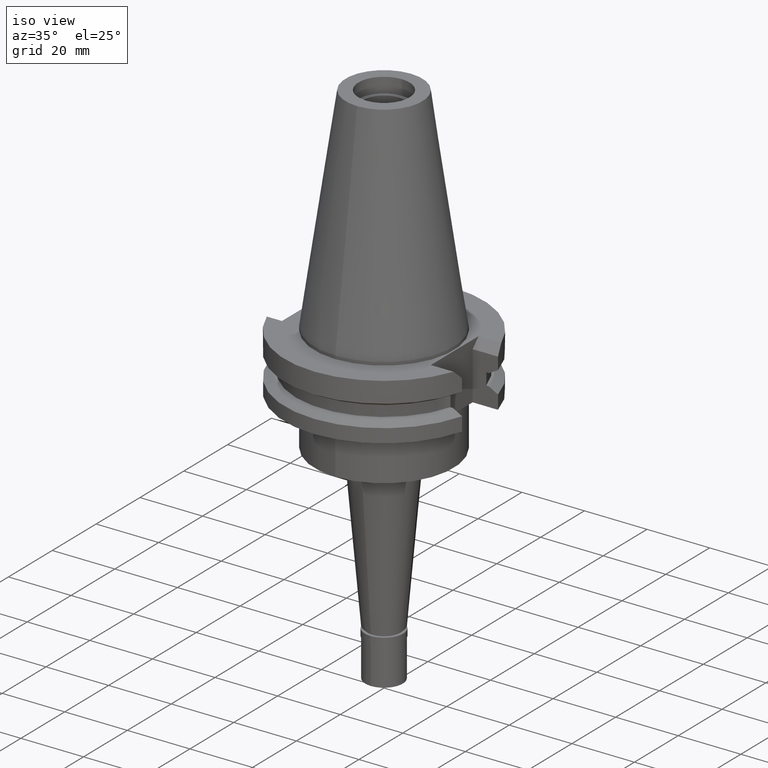
[diagram: clean part render]
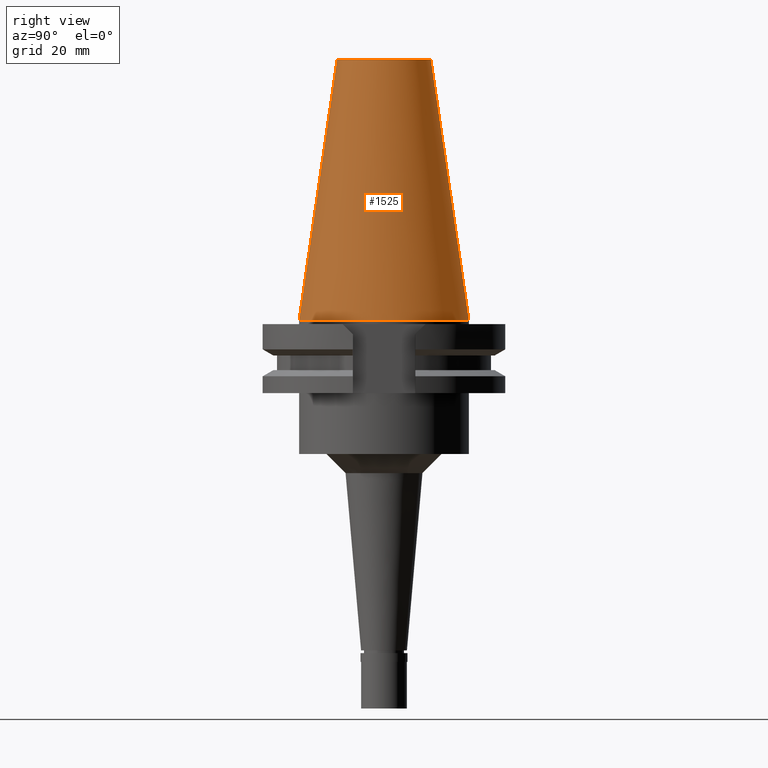
[diagram: tour spotlight — one face highlighted and labeled with its STEP entity id]
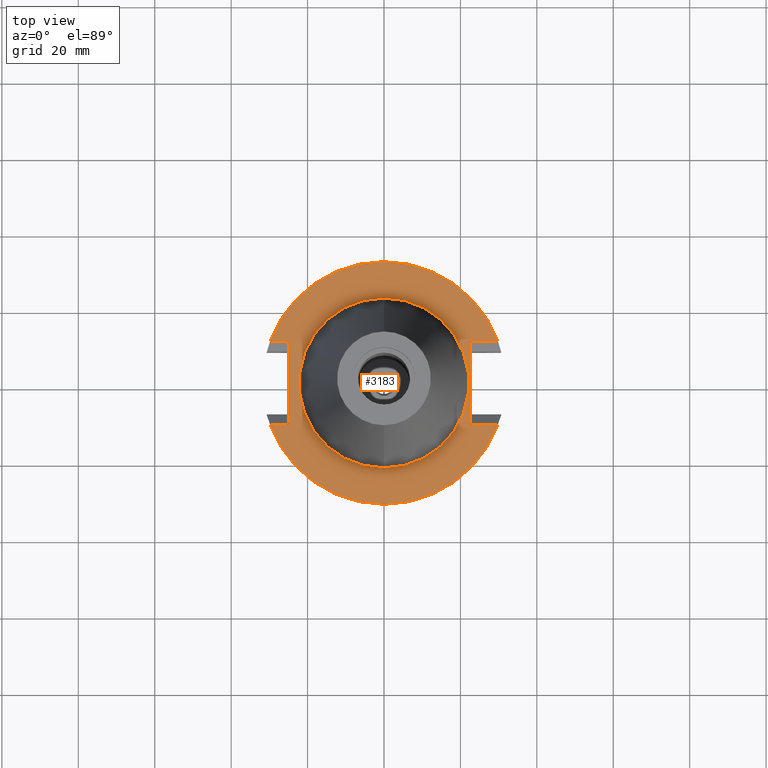
[diagram: tour spotlight — one face highlighted and labeled with its STEP entity id]
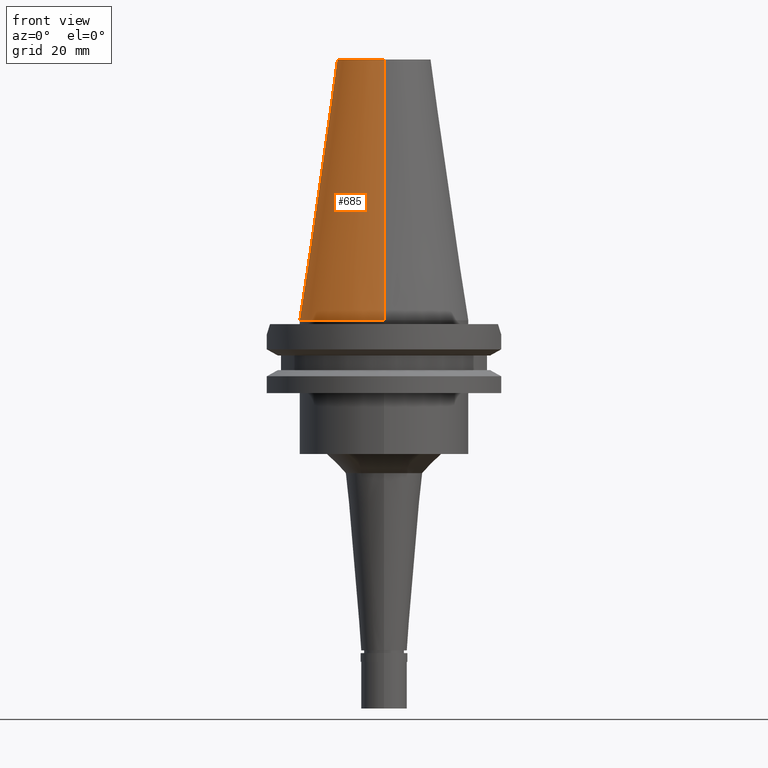
[diagram: tour spotlight — one face highlighted and labeled with its STEP entity id]
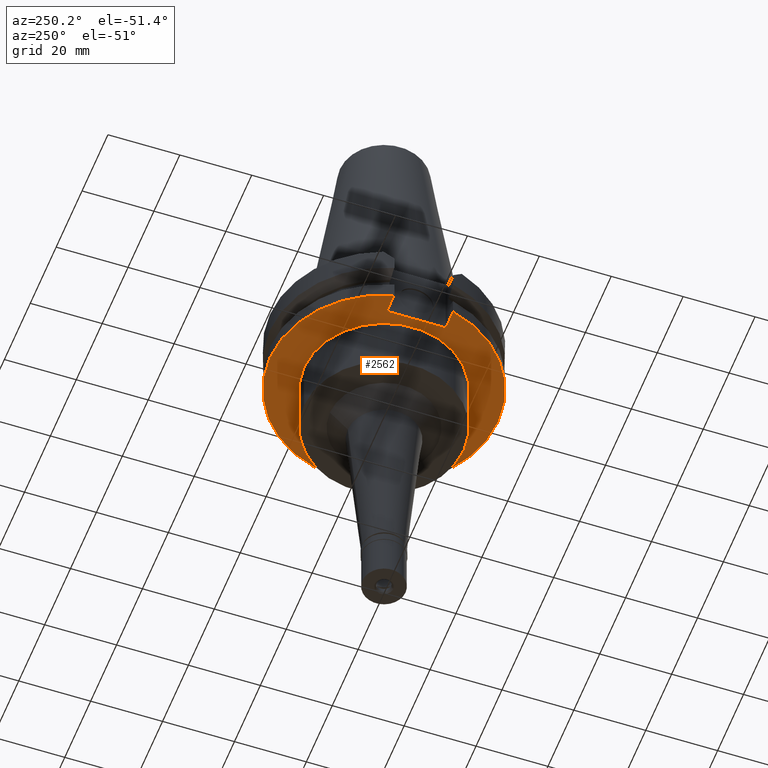
[diagram: tour spotlight — one face highlighted and labeled with its STEP entity id]
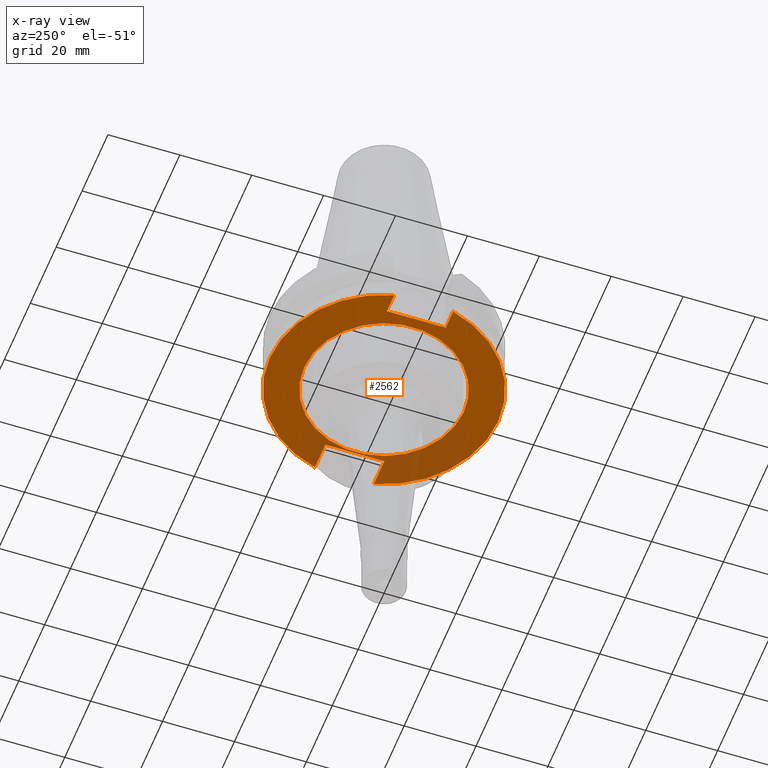
[diagram: x-ray of the same camera — body ghosted, this tour face saturated]
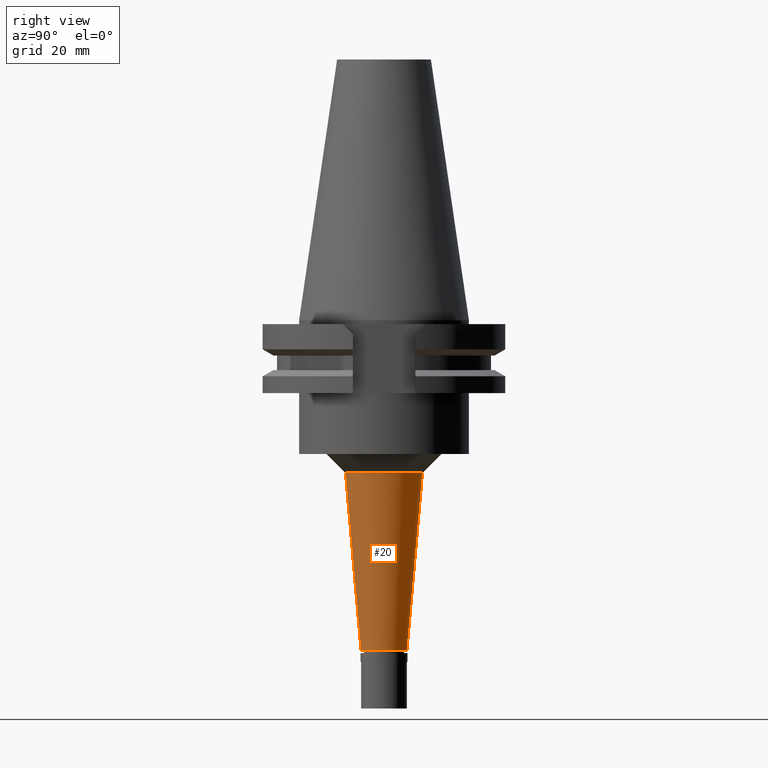
[diagram: tour spotlight — one face highlighted and labeled with its STEP entity id]
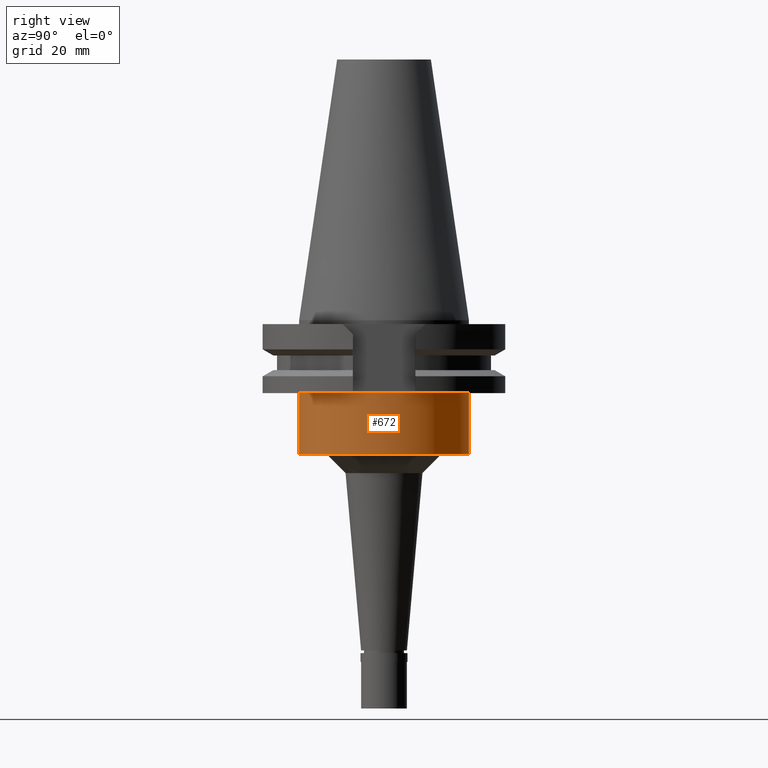
[diagram: tour spotlight — one face highlighted and labeled with its STEP entity id]
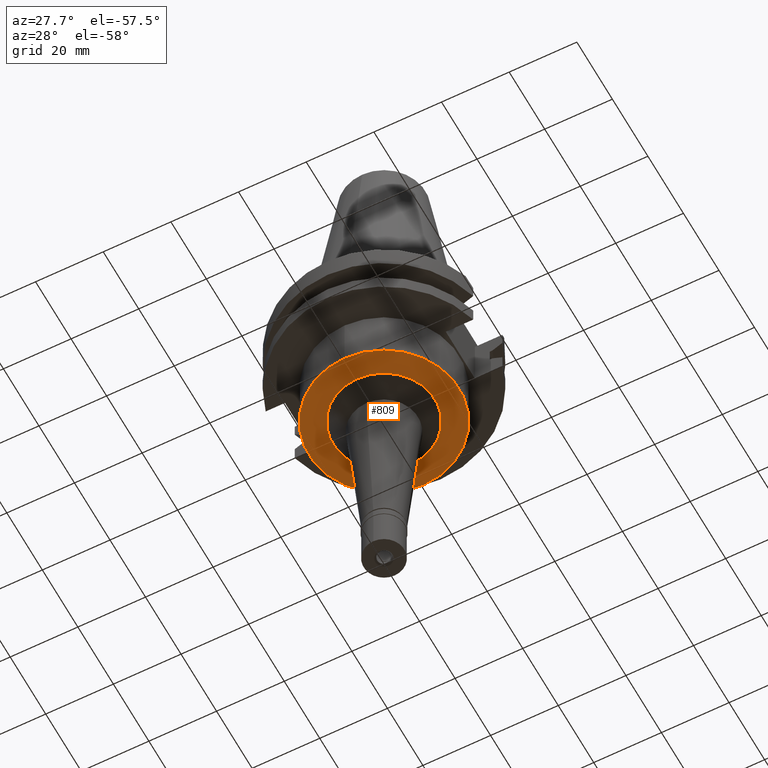
[diagram: tour spotlight — one face highlighted and labeled with its STEP entity id]
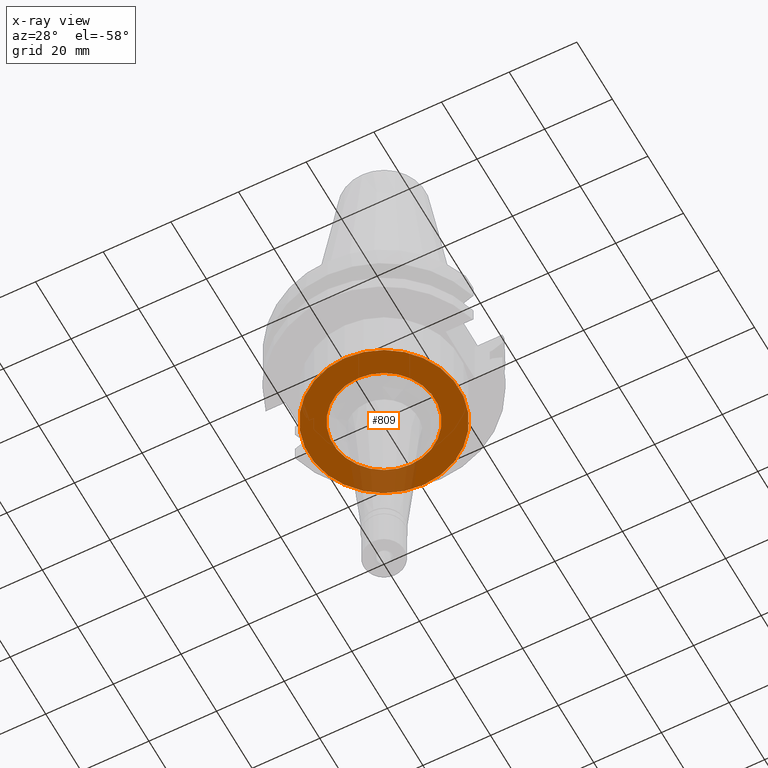
[diagram: x-ray of the same camera — body ghosted, this tour face saturated]
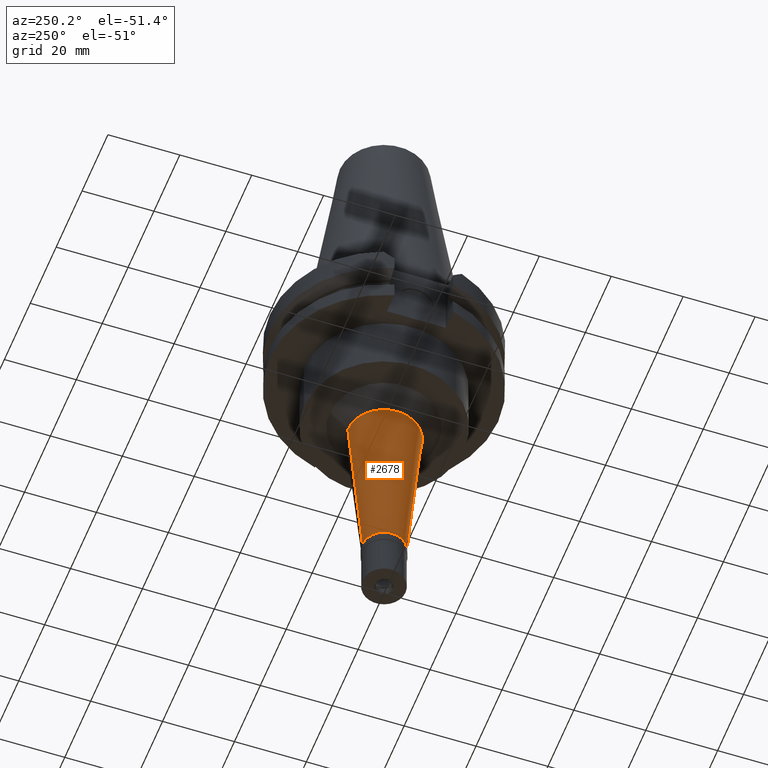
[diagram: tour spotlight — one face highlighted and labeled with its STEP entity id]
A machine part: a face-by-face anatomy tour. The part has 86 B-rep faces; the first image is the clean iso view, then the 8 largest visible faces are spotlighted one at a time (largest first), each with its STEP entity span.

Face 1 — right view, entity #1525. In plain terms, the highlighted conical surface has half-angle 8.297 deg.
Definition (entity closure, byte-faithful):
#22 = DIRECTION ( 'NONE',  ( 0.0000000000000000000, 1.000000000000000000, 0.0000000000000000000 ) ) ;
#133 = CARTESIAN_POINT ( 'NONE',  ( 0.0000000000000000000, 1.642557519355999895E-14, 68.25000000000000000 ) ) ;
#175 = VECTOR ( 'NONE', #2239, 1000.000000000000114 ) ;
#206 = VERTEX_POINT ( 'NONE', #1951 ) ;
#436 = CIRCLE ( 'NONE', #1573, 22.22500000000000142 ) ;
#649 = CONICAL_SURFACE ( 'NONE', #2951, 17.24843444035000317, 0.1448125860318199565 ) ;
#662 = ORIENTED_EDGE ( 'NONE', *, *, #2565, .T. ) ;
#664 = LINE ( 'NONE', #1101, #852 ) ;
#852 = VECTOR ( 'NONE', #2364, 1000.000000000000114 ) ;
#948 = ORIENTED_EDGE ( 'NONE', *, *, #988, .F. ) ;
#988 = EDGE_CURVE ( 'NONE', #2277, #206, #436, .T. ) ;
#1066 = AXIS2_PLACEMENT_3D ( 'NONE', #133, #2405, #2583 ) ;
#1101 = CARTESIAN_POINT ( 'NONE',  ( 0.0000000000000000000, 12.27186888070000137, 68.25000000000000000 ) ) ;
#1115 = CIRCLE ( 'NONE', #1066, 12.27186888070000137 ) ;
#1276 = CARTESIAN_POINT ( 'NONE',  ( 0.0000000000000000000, -12.27186888070000137, 68.25000000000000000 ) ) ;
#1285 = DIRECTION ( 'NONE',  ( 0.0000000000000000000, 0.0000000000000000000, -1.000000000000000000 ) ) ;
#1311 = FACE_OUTER_BOUND ( 'NONE', #2590, .T. ) ;
#1343 = DIRECTION ( 'NONE',  ( 0.0000000000000000000, -1.000000000000000000, 0.0000000000000000000 ) ) ;
#1461 = CARTESIAN_POINT ( 'NONE',  ( 0.0000000000000000000, 1.642557519355999895E-14, -3.126388037344000570E-13 ) ) ;
#1525 = ADVANCED_FACE ( 'NONE', ( #1311 ), #649, .T. ) ;
#1564 = ORIENTED_EDGE ( 'NONE', *, *, #2185, .F. ) ;
#1573 = AXIS2_PLACEMENT_3D ( 'NONE', #1461, #1285, #22 ) ;
#1679 = CARTESIAN_POINT ( 'NONE',  ( 0.0000000000000000000, 12.27186888070000137, 68.25000000000000000 ) ) ;
#1736 = EDGE_CURVE ( 'NONE', #2300, #2166, #1115, .T. ) ;
#1951 = CARTESIAN_POINT ( 'NONE',  ( 0.0000000000000000000, -22.22500000000000142, -1.847411112975999717E-13 ) ) ;
#2008 = ORIENTED_EDGE ( 'NONE', *, *, #1736, .T. ) ;
#2061 = DIRECTION ( 'NONE',  ( 0.0000000000000000000, 0.0000000000000000000, -1.000000000000000000 ) ) ;
#2166 = VERTEX_POINT ( 'NONE', #2319 ) ;
#2185 = EDGE_CURVE ( 'NONE', #2300, #2277, #664, .T. ) ;
#2190 = CARTESIAN_POINT ( 'NONE',  ( 0.0000000000000000000, 22.22500000000000142, -1.847411112975999717E-13 ) ) ;
#2239 = DIRECTION ( 'NONE',  ( 0.0000000000000000000, -0.1443069799456937474, -0.9895329683941577192 ) ) ;
#2263 = CARTESIAN_POINT ( 'NONE',  ( 0.0000000000000000000, 1.642557519355999895E-14, 34.12500000000000000 ) ) ;
#2277 = VERTEX_POINT ( 'NONE', #2190 ) ;
#2300 = VERTEX_POINT ( 'NONE', #1679 ) ;
#2319 = CARTESIAN_POINT ( 'NONE',  ( 0.0000000000000000000, -12.27186888070000137, 68.25000000000000000 ) ) ;
#2364 = DIRECTION ( 'NONE',  ( 0.0000000000000000000, 0.1443069799456937474, -0.9895329683941577192 ) ) ;
#2405 = DIRECTION ( 'NONE',  ( 0.0000000000000000000, 0.0000000000000000000, -1.000000000000000000 ) ) ;
#2565 = EDGE_CURVE ( 'NONE', #2166, #206, #3069, .T. ) ;
#2583 = DIRECTION ( 'NONE',  ( 0.0000000000000000000, 1.000000000000000000, 0.0000000000000000000 ) ) ;
#2590 = EDGE_LOOP ( 'NONE', ( #2008, #662, #948, #1564 ) ) ;
#2951 = AXIS2_PLACEMENT_3D ( 'NONE', #2263, #2061, #1343 ) ;
#3069 = LINE ( 'NONE', #1276, #175 ) ;

Face 2 — top view, entity #3183. In plain terms, the highlighted planar face has unit normal (0, 0, -1).
Definition (entity closure, byte-faithful):
#10 = VECTOR ( 'NONE', #543, 1000.000000000000000 ) ;
#33 = CARTESIAN_POINT ( 'NONE',  ( 22.57000000000000028, 10.89000000000000057, -1.000000000000000000 ) ) ;
#35 = DIRECTION ( 'NONE',  ( 0.0000000000000000000, -1.000000000000000000, 0.0000000000000000000 ) ) ;
#55 = CARTESIAN_POINT ( 'NONE',  ( 22.57000000000000028, -10.89000000000000057, -1.000000000000000000 ) ) ;
#65 = AXIS2_PLACEMENT_3D ( 'NONE', #1481, #2888, #219 ) ;
#93 = EDGE_CURVE ( 'NONE', #946, #1037, #2554, .T. ) ;
#116 = VECTOR ( 'NONE', #1050, 1000.000000000000000 ) ;
#121 = EDGE_CURVE ( 'NONE', #2630, #946, #2220, .T. ) ;
#169 = AXIS2_PLACEMENT_3D ( 'NONE', #3022, #358, #35 ) ;
#170 = CARTESIAN_POINT ( 'NONE',  ( -29.82399034335000110, 10.89000000000000057, -0.9999999999999000799 ) ) ;
#219 = DIRECTION ( 'NONE',  ( 0.0000000000000000000, 1.000000000000000000, 0.0000000000000000000 ) ) ;
#263 = EDGE_CURVE ( 'NONE', #777, #1723, #1766, .T. ) ;
#306 = CARTESIAN_POINT ( 'NONE',  ( 29.82399034335000110, 10.89000000000000057, -1.000000000001000089 ) ) ;
#316 = VERTEX_POINT ( 'NONE', #996 ) ;
#327 = LINE ( 'NONE', #827, #847 ) ;
#358 = DIRECTION ( 'NONE',  ( 0.0000000000000000000, 0.0000000000000000000, 1.000000000000000000 ) ) ;
#432 = EDGE_CURVE ( 'NONE', #1207, #1833, #1441, .T. ) ;
#529 = CARTESIAN_POINT ( 'NONE',  ( -24.98000000000000043, 10.89000000000000057, -1.000000000000000000 ) ) ;
#543 = DIRECTION ( 'NONE',  ( -1.000000000000000000, 8.031026493743999514E-14, 0.0000000000000000000 ) ) ;
#585 = DIRECTION ( 'NONE',  ( 0.0000000000000000000, -1.000000000000000000, 0.0000000000000000000 ) ) ;
#670 = LINE ( 'NONE', #1651, #2756 ) ;
#693 = DIRECTION ( 'NONE',  ( 0.0000000000000000000, 1.000000000000000000, 0.0000000000000000000 ) ) ;
#760 = CARTESIAN_POINT ( 'NONE',  ( -24.98000000000000043, 10.89000000000000057, -1.000000000000000000 ) ) ;
#777 = VERTEX_POINT ( 'NONE', #3118 ) ;
#827 = CARTESIAN_POINT ( 'NONE',  ( 22.57000000000000028, 10.89000000000000057, -1.000000000000000000 ) ) ;
#833 = CARTESIAN_POINT ( 'NONE',  ( -24.98000000000000043, 10.89000000000000057, -1.000000000000000000 ) ) ;
#838 = CARTESIAN_POINT ( 'NONE',  ( 0.0000000000000000000, 1.212400331155999925E-14, -1.000000000000000000 ) ) ;
#847 = VECTOR ( 'NONE', #2791, 1000.000000000000000 ) ;
#870 = EDGE_CURVE ( 'NONE', #316, #2570, #2249, .T. ) ;
#894 = ORIENTED_EDGE ( 'NONE', *, *, #93, .F. ) ;
#933 = CARTESIAN_POINT ( 'NONE',  ( 0.0000000000000000000, 2.162022075384999775E-14, -0.9999999999999000799 ) ) ;
#946 = VERTEX_POINT ( 'NONE', #170 ) ;
#996 = CARTESIAN_POINT ( 'NONE',  ( 0.0000000000000000000, 22.22500000000000142, -1.000000000000000000 ) ) ;
#1037 = VERTEX_POINT ( 'NONE', #306 ) ;
#1050 = DIRECTION ( 'NONE',  ( -1.000000000000000000, -8.031026493743999514E-14, 0.0000000000000000000 ) ) ;
#1068 = AXIS2_PLACEMENT_3D ( 'NONE', #933, #1161, #693 ) ;
#1092 = FACE_OUTER_BOUND ( 'NONE', #3139, .T. ) ;
#1142 = EDGE_CURVE ( 'NONE', #1364, #1037, #327, .T. ) ;
#1161 = DIRECTION ( 'NONE',  ( 0.0000000000000000000, 0.0000000000000000000, -1.000000000000000000 ) ) ;
#1198 = ORIENTED_EDGE ( 'NONE', *, *, #870, .F. ) ;
#1207 = VERTEX_POINT ( 'NONE', #55 ) ;
#1364 = VERTEX_POINT ( 'NONE', #33 ) ;
#1394 = DIRECTION ( 'NONE',  ( 0.0000000000000000000, -1.000000000000000000, 0.0000000000000000000 ) ) ;
#1441 = LINE ( 'NONE', #2709, #2189 ) ;
#1481 = CARTESIAN_POINT ( 'NONE',  ( 0.0000000000000000000, 2.162022075384999775E-14, -1.000000000000000000 ) ) ;
#1488 = CARTESIAN_POINT ( 'NONE',  ( -24.98000000000000043, -10.89000000000000057, -1.000000000000000000 ) ) ;
#1489 = EDGE_CURVE ( 'NONE', #2570, #316, #1728, .T. ) ;
#1523 = LINE ( 'NONE', #833, #2654 ) ;
#1558 = EDGE_CURVE ( 'NONE', #1833, #1723, #1678, .T. ) ;
#1575 = AXIS2_PLACEMENT_3D ( 'NONE', #1806, #2783, #585 ) ;
#1651 = CARTESIAN_POINT ( 'NONE',  ( 22.57000000000000028, 10.89000000000000057, -1.000000000000000000 ) ) ;
#1678 = CIRCLE ( 'NONE', #1575, 31.75000000000000000 ) ;
#1693 = ORIENTED_EDGE ( 'NONE', *, *, #121, .F. ) ;
#1723 = VERTEX_POINT ( 'NONE', #2356 ) ;
#1728 = CIRCLE ( 'NONE', #169, 22.22500000000000142 ) ;
#1729 = ORIENTED_EDGE ( 'NONE', *, *, #432, .F. ) ;
#1751 = CARTESIAN_POINT ( 'NONE',  ( 29.82399034335000110, -10.89000000000000057, -1.000000000001000089 ) ) ;
#1766 = LINE ( 'NONE', #1488, #10 ) ;
#1806 = CARTESIAN_POINT ( 'NONE',  ( 0.0000000000000000000, 2.162022075384999775E-14, -0.9999999999999000799 ) ) ;
#1822 = PLANE ( 'NONE',  #2254 ) ;
#1833 = VERTEX_POINT ( 'NONE', #1751 ) ;
#1871 = ORIENTED_EDGE ( 'NONE', *, *, #2753, .F. ) ;
#1936 = EDGE_LOOP ( 'NONE', ( #1198, #2056 ) ) ;
#1979 = EDGE_CURVE ( 'NONE', #2630, #777, #1523, .T. ) ;
#2006 = CARTESIAN_POINT ( 'NONE',  ( 0.0000000000000000000, -22.22500000000000142, -1.000000000000000000 ) ) ;
#2042 = ORIENTED_EDGE ( 'NONE', *, *, #1142, .T. ) ;
#2056 = ORIENTED_EDGE ( 'NONE', *, *, #1489, .F. ) ;
#2062 = FACE_BOUND ( 'NONE', #1936, .T. ) ;
#2161 = ORIENTED_EDGE ( 'NONE', *, *, #1979, .T. ) ;
#2189 = VECTOR ( 'NONE', #3201, 1000.000000000000000 ) ;
#2220 = LINE ( 'NONE', #529, #116 ) ;
#2249 = CIRCLE ( 'NONE', #65, 22.22500000000000142 ) ;
#2254 = AXIS2_PLACEMENT_3D ( 'NONE', #838, #2802, #1394 ) ;
#2356 = CARTESIAN_POINT ( 'NONE',  ( -29.82399034335000110, -10.89000000000000057, -1.000000000001000089 ) ) ;
#2554 = CIRCLE ( 'NONE', #1068, 31.75000000000000000 ) ;
#2570 = VERTEX_POINT ( 'NONE', #2006 ) ;
#2630 = VERTEX_POINT ( 'NONE', #760 ) ;
#2654 = VECTOR ( 'NONE', #2795, 1000.000000000000000 ) ;
#2709 = CARTESIAN_POINT ( 'NONE',  ( 22.57000000000000028, -10.89000000000000057, -1.000000000000000000 ) ) ;
#2753 = EDGE_CURVE ( 'NONE', #1364, #1207, #670, .T. ) ;
#2756 = VECTOR ( 'NONE', #3082, 1000.000000000000000 ) ;
#2783 = DIRECTION ( 'NONE',  ( 0.0000000000000000000, 0.0000000000000000000, -1.000000000000000000 ) ) ;
#2791 = DIRECTION ( 'NONE',  ( 1.000000000000000000, -5.289407059416999757E-14, 0.0000000000000000000 ) ) ;
#2795 = DIRECTION ( 'NONE',  ( 0.0000000000000000000, -1.000000000000000000, 0.0000000000000000000 ) ) ;
#2802 = DIRECTION ( 'NONE',  ( 0.0000000000000000000, 0.0000000000000000000, -1.000000000000000000 ) ) ;
#2888 = DIRECTION ( 'NONE',  ( 0.0000000000000000000, 0.0000000000000000000, 1.000000000000000000 ) ) ;
#3022 = CARTESIAN_POINT ( 'NONE',  ( 0.0000000000000000000, 2.162022075384999775E-14, -1.000000000000000000 ) ) ;
#3059 = ORIENTED_EDGE ( 'NONE', *, *, #263, .T. ) ;
#3082 = DIRECTION ( 'NONE',  ( 0.0000000000000000000, -1.000000000000000000, 0.0000000000000000000 ) ) ;
#3118 = CARTESIAN_POINT ( 'NONE',  ( -24.98000000000000043, -10.89000000000000057, -1.000000000000000000 ) ) ;
#3139 = EDGE_LOOP ( 'NONE', ( #2042, #894, #1693, #2161, #3059, #3191, #1729, #1871 ) ) ;
#3183 = ADVANCED_FACE ( 'NONE', ( #1092, #2062 ), #1822, .F. ) ;
#3191 = ORIENTED_EDGE ( 'NONE', *, *, #1558, .F. ) ;
#3201 = DIRECTION ( 'NONE',  ( 1.000000000000000000, 5.436335033290000028E-14, 0.0000000000000000000 ) ) ;

Face 3 — front view, entity #685. In plain terms, the highlighted conical surface has half-angle 8.297 deg.
Definition (entity closure, byte-faithful):
#73 = CARTESIAN_POINT ( 'NONE',  ( 0.0000000000000000000, 1.642557519355999895E-14, 34.12500000000000000 ) ) ;
#175 = VECTOR ( 'NONE', #2239, 1000.000000000000114 ) ;
#206 = VERTEX_POINT ( 'NONE', #1951 ) ;
#330 = FACE_OUTER_BOUND ( 'NONE', #1359, .T. ) ;
#376 = ORIENTED_EDGE ( 'NONE', *, *, #987, .F. ) ;
#380 = ORIENTED_EDGE ( 'NONE', *, *, #2185, .T. ) ;
#390 = CONICAL_SURFACE ( 'NONE', #2958, 17.24843444035000317, 0.1448125860318199565 ) ;
#474 = DIRECTION ( 'NONE',  ( 0.0000000000000000000, -1.000000000000000000, 0.0000000000000000000 ) ) ;
#664 = LINE ( 'NONE', #1101, #852 ) ;
#685 = ADVANCED_FACE ( 'NONE', ( #330 ), #390, .T. ) ;
#852 = VECTOR ( 'NONE', #2364, 1000.000000000000114 ) ;
#987 = EDGE_CURVE ( 'NONE', #206, #2277, #2297, .T. ) ;
#1101 = CARTESIAN_POINT ( 'NONE',  ( 0.0000000000000000000, 12.27186888070000137, 68.25000000000000000 ) ) ;
#1234 = DIRECTION ( 'NONE',  ( 0.0000000000000000000, -1.000000000000000000, 0.0000000000000000000 ) ) ;
#1276 = CARTESIAN_POINT ( 'NONE',  ( 0.0000000000000000000, -12.27186888070000137, 68.25000000000000000 ) ) ;
#1359 = EDGE_LOOP ( 'NONE', ( #376, #2731, #2538, #380 ) ) ;
#1528 = CIRCLE ( 'NONE', #2498, 12.27186888070000137 ) ;
#1606 = DIRECTION ( 'NONE',  ( 0.0000000000000000000, -1.000000000000000000, 0.0000000000000000000 ) ) ;
#1635 = EDGE_CURVE ( 'NONE', #2166, #2300, #1528, .T. ) ;
#1679 = CARTESIAN_POINT ( 'NONE',  ( 0.0000000000000000000, 12.27186888070000137, 68.25000000000000000 ) ) ;
#1703 = CARTESIAN_POINT ( 'NONE',  ( 0.0000000000000000000, 1.642557519355999895E-14, -3.126388037344000570E-13 ) ) ;
#1837 = DIRECTION ( 'NONE',  ( 0.0000000000000000000, 0.0000000000000000000, -1.000000000000000000 ) ) ;
#1951 = CARTESIAN_POINT ( 'NONE',  ( 0.0000000000000000000, -22.22500000000000142, -1.847411112975999717E-13 ) ) ;
#2086 = AXIS2_PLACEMENT_3D ( 'NONE', #1703, #2680, #474 ) ;
#2166 = VERTEX_POINT ( 'NONE', #2319 ) ;
#2185 = EDGE_CURVE ( 'NONE', #2300, #2277, #664, .T. ) ;
#2190 = CARTESIAN_POINT ( 'NONE',  ( 0.0000000000000000000, 22.22500000000000142, -1.847411112975999717E-13 ) ) ;
#2239 = DIRECTION ( 'NONE',  ( 0.0000000000000000000, -0.1443069799456937474, -0.9895329683941577192 ) ) ;
#2277 = VERTEX_POINT ( 'NONE', #2190 ) ;
#2297 = CIRCLE ( 'NONE', #2086, 22.22500000000000142 ) ;
#2300 = VERTEX_POINT ( 'NONE', #1679 ) ;
#2319 = CARTESIAN_POINT ( 'NONE',  ( 0.0000000000000000000, -12.27186888070000137, 68.25000000000000000 ) ) ;
#2364 = DIRECTION ( 'NONE',  ( 0.0000000000000000000, 0.1443069799456937474, -0.9895329683941577192 ) ) ;
#2368 = CARTESIAN_POINT ( 'NONE',  ( 0.0000000000000000000, 1.642557519355999895E-14, 68.25000000000000000 ) ) ;
#2498 = AXIS2_PLACEMENT_3D ( 'NONE', #2368, #1837, #1606 ) ;
#2538 = ORIENTED_EDGE ( 'NONE', *, *, #1635, .T. ) ;
#2565 = EDGE_CURVE ( 'NONE', #2166, #206, #3069, .T. ) ;
#2680 = DIRECTION ( 'NONE',  ( 0.0000000000000000000, 0.0000000000000000000, -1.000000000000000000 ) ) ;
#2731 = ORIENTED_EDGE ( 'NONE', *, *, #2565, .F. ) ;
#2920 = DIRECTION ( 'NONE',  ( 0.0000000000000000000, 0.0000000000000000000, -1.000000000000000000 ) ) ;
#2958 = AXIS2_PLACEMENT_3D ( 'NONE', #73, #2920, #1234 ) ;
#3069 = LINE ( 'NONE', #1276, #175 ) ;

Face 4 — auxiliary view, entity #2562. An x-ray twin of the same camera follows (body ghosted, this face saturated) — the face is partly hidden behind the body. In plain terms, the highlighted planar face has unit normal (0, 0, -1).
Definition (entity closure, byte-faithful):
#57 = EDGE_CURVE ( 'NONE', #952, #426, #850, .T. ) ;
#164 = CARTESIAN_POINT ( 'NONE',  ( 0.0000000000000000000, -22.22500000000000142, -19.05000000000000071 ) ) ;
#215 = CARTESIAN_POINT ( 'NONE',  ( 22.57000000000000028, 8.189999999999999503, -19.05000000000000071 ) ) ;
#226 = ORIENTED_EDGE ( 'NONE', *, *, #1697, .F. ) ;
#261 = DIRECTION ( 'NONE',  ( 0.0000000000000000000, -1.000000000000000000, 0.0000000000000000000 ) ) ;
#277 = AXIS2_PLACEMENT_3D ( 'NONE', #2627, #1622, #1133 ) ;
#403 = DIRECTION ( 'NONE',  ( 1.000000000000000000, 0.0000000000000000000, 0.0000000000000000000 ) ) ;
#423 = CARTESIAN_POINT ( 'NONE',  ( -30.67550162588999640, -8.189999999999999503, -19.05000000000000071 ) ) ;
#426 = VERTEX_POINT ( 'NONE', #164 ) ;
#427 = LINE ( 'NONE', #947, #1739 ) ;
#467 = LINE ( 'NONE', #215, #1783 ) ;
#505 = DIRECTION ( 'NONE',  ( 1.000000000000000000, 0.0000000000000000000, 0.0000000000000000000 ) ) ;
#516 = EDGE_CURVE ( 'NONE', #426, #952, #2707, .T. ) ;
#531 = DIRECTION ( 'NONE',  ( 0.0000000000000000000, -1.000000000000000000, 0.0000000000000000000 ) ) ;
#540 = ORIENTED_EDGE ( 'NONE', *, *, #2502, .F. ) ;
#611 = FACE_BOUND ( 'NONE', #1085, .T. ) ;
#666 = CARTESIAN_POINT ( 'NONE',  ( -24.98000000000000043, -8.189999999999999503, -19.05000000000000071 ) ) ;
#675 = ORIENTED_EDGE ( 'NONE', *, *, #1601, .T. ) ;
#721 = CARTESIAN_POINT ( 'NONE',  ( 0.0000000000000000000, 22.22500000000000142, -19.05000000000000071 ) ) ;
#742 = LINE ( 'NONE', #934, #2710 ) ;
#821 = EDGE_CURVE ( 'NONE', #1642, #2699, #427, .T. ) ;
#849 = CIRCLE ( 'NONE', #277, 31.75000000000000000 ) ;
#850 = CIRCLE ( 'NONE', #1318, 22.22500000000000142 ) ;
#874 = LINE ( 'NONE', #1664, #2242 ) ;
#934 = CARTESIAN_POINT ( 'NONE',  ( 22.57000000000000028, 8.189999999999999503, -19.05000000000000071 ) ) ;
#947 = CARTESIAN_POINT ( 'NONE',  ( -24.98000000000000043, -8.189999999999999503, -19.05000000000000071 ) ) ;
#952 = VERTEX_POINT ( 'NONE', #721 ) ;
#966 = AXIS2_PLACEMENT_3D ( 'NONE', #2734, #1334, #531 ) ;
#1010 = VERTEX_POINT ( 'NONE', #1079 ) ;
#1017 = AXIS2_PLACEMENT_3D ( 'NONE', #2041, #1024, #1324 ) ;
#1024 = DIRECTION ( 'NONE',  ( 0.0000000000000000000, 0.0000000000000000000, -1.000000000000000000 ) ) ;
#1040 = FACE_OUTER_BOUND ( 'NONE', #2182, .T. ) ;
#1079 = CARTESIAN_POINT ( 'NONE',  ( 22.57000000000000028, -8.189999999999999503, -19.05000000000000071 ) ) ;
#1084 = VERTEX_POINT ( 'NONE', #2715 ) ;
#1085 = EDGE_LOOP ( 'NONE', ( #1452, #2011 ) ) ;
#1126 = EDGE_CURVE ( 'NONE', #2217, #1662, #1612, .T. ) ;
#1133 = DIRECTION ( 'NONE',  ( 0.0000000000000000000, 1.000000000000000000, 0.0000000000000000000 ) ) ;
#1147 = ORIENTED_EDGE ( 'NONE', *, *, #2501, .F. ) ;
#1318 = AXIS2_PLACEMENT_3D ( 'NONE', #3181, #2169, #2915 ) ;
#1324 = DIRECTION ( 'NONE',  ( 0.0000000000000000000, -1.000000000000000000, 0.0000000000000000000 ) ) ;
#1326 = VERTEX_POINT ( 'NONE', #2973 ) ;
#1334 = DIRECTION ( 'NONE',  ( 0.0000000000000000000, 0.0000000000000000000, 1.000000000000000000 ) ) ;
#1416 = ORIENTED_EDGE ( 'NONE', *, *, #1126, .T. ) ;
#1430 = VERTEX_POINT ( 'NONE', #1764 ) ;
#1452 = ORIENTED_EDGE ( 'NONE', *, *, #57, .F. ) ;
#1517 = CARTESIAN_POINT ( 'NONE',  ( -24.98000000000000043, 8.189999999999999503, -19.05000000000000071 ) ) ;
#1601 = EDGE_CURVE ( 'NONE', #1010, #1084, #874, .T. ) ;
#1612 = LINE ( 'NONE', #2053, #2444 ) ;
#1622 = DIRECTION ( 'NONE',  ( 0.0000000000000000000, 0.0000000000000000000, 1.000000000000000000 ) ) ;
#1642 = VERTEX_POINT ( 'NONE', #666 ) ;
#1662 = VERTEX_POINT ( 'NONE', #2337 ) ;
#1664 = CARTESIAN_POINT ( 'NONE',  ( 22.57000000000000028, -8.189999999999999503, -19.05000000000000071 ) ) ;
#1691 = DIRECTION ( 'NONE',  ( -1.000000000000000000, 0.0000000000000000000, 0.0000000000000000000 ) ) ;
#1697 = EDGE_CURVE ( 'NONE', #1430, #1662, #849, .T. ) ;
#1739 = VECTOR ( 'NONE', #1691, 1000.000000000000000 ) ;
#1747 = LINE ( 'NONE', #1517, #2848 ) ;
#1764 = CARTESIAN_POINT ( 'NONE',  ( 30.67550162588999640, 8.189999999999999503, -19.05000000000000071 ) ) ;
#1783 = VECTOR ( 'NONE', #505, 1000.000000000000000 ) ;
#1810 = DIRECTION ( 'NONE',  ( 0.0000000000000000000, 0.0000000000000000000, -1.000000000000000000 ) ) ;
#1840 = CARTESIAN_POINT ( 'NONE',  ( 0.0000000000000000000, 0.0000000000000000000, -19.05000000000000071 ) ) ;
#1878 = AXIS2_PLACEMENT_3D ( 'NONE', #1840, #1810, #261 ) ;
#1958 = DIRECTION ( 'NONE',  ( 0.0000000000000000000, -1.000000000000000000, 0.0000000000000000000 ) ) ;
#2011 = ORIENTED_EDGE ( 'NONE', *, *, #516, .F. ) ;
#2041 = CARTESIAN_POINT ( 'NONE',  ( 0.0000000000000000000, 2.162022075384999775E-14, -19.05000000000000071 ) ) ;
#2053 = CARTESIAN_POINT ( 'NONE',  ( -24.98000000000000043, 8.189999999999999503, -19.05000000000000071 ) ) ;
#2089 = CARTESIAN_POINT ( 'NONE',  ( -24.98000000000000043, 8.189999999999999503, -19.05000000000000071 ) ) ;
#2169 = DIRECTION ( 'NONE',  ( 0.0000000000000000000, 0.0000000000000000000, -1.000000000000000000 ) ) ;
#2182 = EDGE_LOOP ( 'NONE', ( #675, #1147, #2527, #540, #1416, #226, #2635, #2202 ) ) ;
#2202 = ORIENTED_EDGE ( 'NONE', *, *, #2304, .T. ) ;
#2217 = VERTEX_POINT ( 'NONE', #2089 ) ;
#2242 = VECTOR ( 'NONE', #403, 1000.000000000000000 ) ;
#2304 = EDGE_CURVE ( 'NONE', #1326, #1010, #742, .T. ) ;
#2317 = EDGE_CURVE ( 'NONE', #1326, #1430, #467, .T. ) ;
#2337 = CARTESIAN_POINT ( 'NONE',  ( -30.67550162588999640, 8.189999999999999503, -19.05000000000000071 ) ) ;
#2444 = VECTOR ( 'NONE', #3028, 1000.000000000000000 ) ;
#2501 = EDGE_CURVE ( 'NONE', #2699, #1084, #3066, .T. ) ;
#2502 = EDGE_CURVE ( 'NONE', #2217, #1642, #1747, .T. ) ;
#2527 = ORIENTED_EDGE ( 'NONE', *, *, #821, .F. ) ;
#2558 = PLANE ( 'NONE',  #1878 ) ;
#2562 = ADVANCED_FACE ( 'NONE', ( #1040, #611 ), #2558, .T. ) ;
#2585 = DIRECTION ( 'NONE',  ( 0.0000000000000000000, -1.000000000000000000, 0.0000000000000000000 ) ) ;
#2627 = CARTESIAN_POINT ( 'NONE',  ( 0.0000000000000000000, 2.162022075384999775E-14, -19.05000000000000071 ) ) ;
#2635 = ORIENTED_EDGE ( 'NONE', *, *, #2317, .F. ) ;
#2699 = VERTEX_POINT ( 'NONE', #423 ) ;
#2707 = CIRCLE ( 'NONE', #1017, 22.22500000000000142 ) ;
#2710 = VECTOR ( 'NONE', #1958, 1000.000000000000000 ) ;
#2715 = CARTESIAN_POINT ( 'NONE',  ( 30.67550162588999640, -8.189999999999999503, -19.05000000000000071 ) ) ;
#2734 = CARTESIAN_POINT ( 'NONE',  ( 0.0000000000000000000, 2.162022075384999775E-14, -19.05000000000000071 ) ) ;
#2848 = VECTOR ( 'NONE', #2585, 1000.000000000000000 ) ;
#2915 = DIRECTION ( 'NONE',  ( 0.0000000000000000000, 1.000000000000000000, 0.0000000000000000000 ) ) ;
#2973 = CARTESIAN_POINT ( 'NONE',  ( 22.57000000000000028, 8.189999999999999503, -19.05000000000000071 ) ) ;
#3028 = DIRECTION ( 'NONE',  ( -1.000000000000000000, 0.0000000000000000000, 0.0000000000000000000 ) ) ;
#3066 = CIRCLE ( 'NONE', #966, 31.75000000000000000 ) ;
#3181 = CARTESIAN_POINT ( 'NONE',  ( 0.0000000000000000000, 2.162022075384999775E-14, -19.05000000000000071 ) ) ;

Face 5 — right view, entity #20. In plain terms, the highlighted conical surface has half-angle 5 deg.
Definition (entity closure, byte-faithful):
#20 = ADVANCED_FACE ( 'NONE', ( #2686 ), #598, .T. ) ;
#195 = DIRECTION ( 'NONE',  ( 0.0000000000000000000, 0.0000000000000000000, 1.000000000000000000 ) ) ;
#290 = VERTEX_POINT ( 'NONE', #2267 ) ;
#361 = CARTESIAN_POINT ( 'NONE',  ( 0.0000000000000000000, 6.000000000000000000, -86.40000000000000568 ) ) ;
#546 = VERTEX_POINT ( 'NONE', #2007 ) ;
#598 = CONICAL_SURFACE ( 'NONE', #1266, 8.029736993800998590, 0.08726646259969973729 ) ;
#690 = ORIENTED_EDGE ( 'NONE', *, *, #1792, .T. ) ;
#798 = CIRCLE ( 'NONE', #1479, 6.000000000000000000 ) ;
#1012 = AXIS2_PLACEMENT_3D ( 'NONE', #1779, #3009, #2800 ) ;
#1039 = CARTESIAN_POINT ( 'NONE',  ( 0.0000000000000000000, 10.05947398760000056, -40.00000000000000000 ) ) ;
#1104 = VERTEX_POINT ( 'NONE', #1039 ) ;
#1120 = VECTOR ( 'NONE', #2955, 1000.000000000000114 ) ;
#1162 = CIRCLE ( 'NONE', #1012, 10.05947398760000056 ) ;
#1266 = AXIS2_PLACEMENT_3D ( 'NONE', #2673, #195, #2864 ) ;
#1422 = EDGE_CURVE ( 'NONE', #290, #1104, #1162, .T. ) ;
#1479 = AXIS2_PLACEMENT_3D ( 'NONE', #2225, #1909, #2725 ) ;
#1587 = VECTOR ( 'NONE', #2408, 1000.000000000000114 ) ;
#1595 = CARTESIAN_POINT ( 'NONE',  ( 0.0000000000000000000, 10.05947398760000056, -40.00000000000000000 ) ) ;
#1779 = CARTESIAN_POINT ( 'NONE',  ( 0.0000000000000000000, 0.0000000000000000000, -40.00000000000000000 ) ) ;
#1792 = EDGE_CURVE ( 'NONE', #546, #2418, #798, .T. ) ;
#1854 = LINE ( 'NONE', #2163, #1587 ) ;
#1909 = DIRECTION ( 'NONE',  ( 0.0000000000000000000, 0.0000000000000000000, 1.000000000000000000 ) ) ;
#2007 = CARTESIAN_POINT ( 'NONE',  ( 0.0000000000000000000, -6.000000000000000000, -86.40000000000000568 ) ) ;
#2163 = CARTESIAN_POINT ( 'NONE',  ( 0.0000000000000000000, -10.05947398760000056, -40.00000000000000000 ) ) ;
#2165 = EDGE_LOOP ( 'NONE', ( #2232, #2664, #690, #2228 ) ) ;
#2225 = CARTESIAN_POINT ( 'NONE',  ( 0.0000000000000000000, 0.0000000000000000000, -86.40000000000000568 ) ) ;
#2228 = ORIENTED_EDGE ( 'NONE', *, *, #2619, .F. ) ;
#2232 = ORIENTED_EDGE ( 'NONE', *, *, #1422, .F. ) ;
#2267 = CARTESIAN_POINT ( 'NONE',  ( 0.0000000000000000000, -10.05947398760000056, -40.00000000000000000 ) ) ;
#2408 = DIRECTION ( 'NONE',  ( 0.0000000000000000000, 0.08715574274763414342, -0.9961946980917475436 ) ) ;
#2418 = VERTEX_POINT ( 'NONE', #361 ) ;
#2619 = EDGE_CURVE ( 'NONE', #1104, #2418, #2806, .T. ) ;
#2662 = EDGE_CURVE ( 'NONE', #290, #546, #1854, .T. ) ;
#2664 = ORIENTED_EDGE ( 'NONE', *, *, #2662, .T. ) ;
#2673 = CARTESIAN_POINT ( 'NONE',  ( 0.0000000000000000000, 0.0000000000000000000, -63.20000000000000284 ) ) ;
#2686 = FACE_OUTER_BOUND ( 'NONE', #2165, .T. ) ;
#2725 = DIRECTION ( 'NONE',  ( 0.0000000000000000000, -1.000000000000000000, 0.0000000000000000000 ) ) ;
#2800 = DIRECTION ( 'NONE',  ( 0.0000000000000000000, -1.000000000000000000, 0.0000000000000000000 ) ) ;
#2806 = LINE ( 'NONE', #1595, #1120 ) ;
#2864 = DIRECTION ( 'NONE',  ( 0.0000000000000000000, 1.000000000000000000, 0.0000000000000000000 ) ) ;
#2955 = DIRECTION ( 'NONE',  ( 0.0000000000000000000, -0.08715574274763414342, -0.9961946980917475436 ) ) ;
#3009 = DIRECTION ( 'NONE',  ( 0.0000000000000000000, 0.0000000000000000000, 1.000000000000000000 ) ) ;

Face 6 — right view, entity #672. In plain terms, the highlighted cylindrical surface (partial cylindrical patch) has radius 22.225 mm, axis along (0, 0, -1).
Definition (entity closure, byte-faithful):
#57 = EDGE_CURVE ( 'NONE', #952, #426, #850, .T. ) ;
#84 = CARTESIAN_POINT ( 'NONE',  ( 0.0000000000000000000, 22.22500000000000142, -35.00000000000000000 ) ) ;
#164 = CARTESIAN_POINT ( 'NONE',  ( 0.0000000000000000000, -22.22500000000000142, -19.05000000000000071 ) ) ;
#274 = CIRCLE ( 'NONE', #1675, 22.22500000000000142 ) ;
#426 = VERTEX_POINT ( 'NONE', #164 ) ;
#443 = AXIS2_PLACEMENT_3D ( 'NONE', #1247, #1025, #1212 ) ;
#449 = ORIENTED_EDGE ( 'NONE', *, *, #1246, .T. ) ;
#672 = ADVANCED_FACE ( 'NONE', ( #2241 ), #1493, .T. ) ;
#721 = CARTESIAN_POINT ( 'NONE',  ( 0.0000000000000000000, 22.22500000000000142, -19.05000000000000071 ) ) ;
#850 = CIRCLE ( 'NONE', #1318, 22.22500000000000142 ) ;
#880 = EDGE_CURVE ( 'NONE', #952, #3178, #1898, .T. ) ;
#882 = ORIENTED_EDGE ( 'NONE', *, *, #880, .F. ) ;
#925 = CARTESIAN_POINT ( 'NONE',  ( 0.0000000000000000000, 22.22500000000000142, -19.05000000000000071 ) ) ;
#942 = CARTESIAN_POINT ( 'NONE',  ( 0.0000000000000000000, -22.22500000000000142, -19.05000000000000071 ) ) ;
#952 = VERTEX_POINT ( 'NONE', #721 ) ;
#1025 = DIRECTION ( 'NONE',  ( 0.0000000000000000000, 0.0000000000000000000, -1.000000000000000000 ) ) ;
#1212 = DIRECTION ( 'NONE',  ( 0.0000000000000000000, -1.000000000000000000, 0.0000000000000000000 ) ) ;
#1246 = EDGE_CURVE ( 'NONE', #2149, #3178, #274, .T. ) ;
#1247 = CARTESIAN_POINT ( 'NONE',  ( 0.0000000000000000000, 2.162022075384999775E-14, 76.54250000000000398 ) ) ;
#1318 = AXIS2_PLACEMENT_3D ( 'NONE', #3181, #2169, #2915 ) ;
#1473 = ORIENTED_EDGE ( 'NONE', *, *, #2730, .T. ) ;
#1493 = CYLINDRICAL_SURFACE ( 'NONE', #443, 22.22500000000000142 ) ;
#1550 = DIRECTION ( 'NONE',  ( 0.0000000000000000000, 0.0000000000000000000, 1.000000000000000000 ) ) ;
#1588 = VECTOR ( 'NONE', #3156, 1000.000000000000000 ) ;
#1675 = AXIS2_PLACEMENT_3D ( 'NONE', #2561, #1550, #2997 ) ;
#1898 = LINE ( 'NONE', #925, #1588 ) ;
#1915 = DIRECTION ( 'NONE',  ( 0.0000000000000000000, 0.0000000000000000000, -1.000000000000000000 ) ) ;
#1982 = VECTOR ( 'NONE', #1915, 1000.000000000000000 ) ;
#2149 = VERTEX_POINT ( 'NONE', #3123 ) ;
#2169 = DIRECTION ( 'NONE',  ( 0.0000000000000000000, 0.0000000000000000000, -1.000000000000000000 ) ) ;
#2241 = FACE_OUTER_BOUND ( 'NONE', #2762, .T. ) ;
#2561 = CARTESIAN_POINT ( 'NONE',  ( 0.0000000000000000000, 2.162022075384999775E-14, -35.00000000000000000 ) ) ;
#2730 = EDGE_CURVE ( 'NONE', #426, #2149, #3093, .T. ) ;
#2762 = EDGE_LOOP ( 'NONE', ( #2892, #1473, #449, #882 ) ) ;
#2892 = ORIENTED_EDGE ( 'NONE', *, *, #57, .T. ) ;
#2915 = DIRECTION ( 'NONE',  ( 0.0000000000000000000, 1.000000000000000000, 0.0000000000000000000 ) ) ;
#2997 = DIRECTION ( 'NONE',  ( 0.0000000000000000000, -1.000000000000000000, 0.0000000000000000000 ) ) ;
#3093 = LINE ( 'NONE', #942, #1982 ) ;
#3123 = CARTESIAN_POINT ( 'NONE',  ( 0.0000000000000000000, -22.22500000000000142, -35.00000000000000000 ) ) ;
#3156 = DIRECTION ( 'NONE',  ( 0.0000000000000000000, 0.0000000000000000000, -1.000000000000000000 ) ) ;
#3178 = VERTEX_POINT ( 'NONE', #84 ) ;
#3181 = CARTESIAN_POINT ( 'NONE',  ( 0.0000000000000000000, 2.162022075384999775E-14, -19.05000000000000071 ) ) ;

Face 7 — auxiliary view, entity #809. An x-ray twin of the same camera follows (body ghosted, this face saturated) — the face is partly hidden behind the body. In plain terms, the highlighted planar face has unit normal (0, 0, -1).
Definition (entity closure, byte-faithful):
#84 = CARTESIAN_POINT ( 'NONE',  ( 0.0000000000000000000, 22.22500000000000142, -35.00000000000000000 ) ) ;
#128 = FACE_OUTER_BOUND ( 'NONE', #2387, .T. ) ;
#135 = VERTEX_POINT ( 'NONE', #1304 ) ;
#274 = CIRCLE ( 'NONE', #1675, 22.22500000000000142 ) ;
#364 = PLANE ( 'NONE',  #552 ) ;
#397 = DIRECTION ( 'NONE',  ( 0.0000000000000000000, -1.000000000000000000, 0.0000000000000000000 ) ) ;
#459 = DIRECTION ( 'NONE',  ( 0.0000000000000000000, 0.0000000000000000000, 1.000000000000000000 ) ) ;
#493 = CIRCLE ( 'NONE', #3106, 15.05947398760000056 ) ;
#552 = AXIS2_PLACEMENT_3D ( 'NONE', #2087, #3073, #397 ) ;
#680 = ORIENTED_EDGE ( 'NONE', *, *, #1246, .F. ) ;
#709 = AXIS2_PLACEMENT_3D ( 'NONE', #1211, #2414, #1003 ) ;
#809 = ADVANCED_FACE ( 'NONE', ( #128, #2607 ), #364, .T. ) ;
#853 = AXIS2_PLACEMENT_3D ( 'NONE', #2695, #459, #1175 ) ;
#969 = EDGE_CURVE ( 'NONE', #3178, #2149, #2449, .T. ) ;
#976 = ORIENTED_EDGE ( 'NONE', *, *, #2379, .F. ) ;
#1003 = DIRECTION ( 'NONE',  ( 0.0000000000000000000, 1.000000000000000000, 0.0000000000000000000 ) ) ;
#1175 = DIRECTION ( 'NONE',  ( 0.0000000000000000000, 1.000000000000000000, 0.0000000000000000000 ) ) ;
#1211 = CARTESIAN_POINT ( 'NONE',  ( 0.0000000000000000000, 0.0000000000000000000, -35.00000000000000000 ) ) ;
#1246 = EDGE_CURVE ( 'NONE', #2149, #3178, #274, .T. ) ;
#1304 = CARTESIAN_POINT ( 'NONE',  ( 0.0000000000000000000, 15.05947398760000056, -35.00000000000000000 ) ) ;
#1337 = ORIENTED_EDGE ( 'NONE', *, *, #1396, .F. ) ;
#1396 = EDGE_CURVE ( 'NONE', #1813, #135, #493, .T. ) ;
#1550 = DIRECTION ( 'NONE',  ( 0.0000000000000000000, 0.0000000000000000000, 1.000000000000000000 ) ) ;
#1592 = DIRECTION ( 'NONE',  ( 0.0000000000000000000, -1.000000000000000000, 0.0000000000000000000 ) ) ;
#1675 = AXIS2_PLACEMENT_3D ( 'NONE', #2561, #1550, #2997 ) ;
#1813 = VERTEX_POINT ( 'NONE', #2431 ) ;
#1903 = EDGE_LOOP ( 'NONE', ( #976, #1337 ) ) ;
#2046 = DIRECTION ( 'NONE',  ( 0.0000000000000000000, 0.0000000000000000000, -1.000000000000000000 ) ) ;
#2087 = CARTESIAN_POINT ( 'NONE',  ( 0.0000000000000000000, 0.0000000000000000000, -35.00000000000000000 ) ) ;
#2138 = CIRCLE ( 'NONE', #709, 15.05947398760000056 ) ;
#2149 = VERTEX_POINT ( 'NONE', #3123 ) ;
#2312 = CARTESIAN_POINT ( 'NONE',  ( 0.0000000000000000000, 0.0000000000000000000, -35.00000000000000000 ) ) ;
#2379 = EDGE_CURVE ( 'NONE', #135, #1813, #2138, .T. ) ;
#2387 = EDGE_LOOP ( 'NONE', ( #3032, #680 ) ) ;
#2414 = DIRECTION ( 'NONE',  ( 0.0000000000000000000, 0.0000000000000000000, -1.000000000000000000 ) ) ;
#2431 = CARTESIAN_POINT ( 'NONE',  ( 0.0000000000000000000, -15.05947398760000056, -35.00000000000000000 ) ) ;
#2449 = CIRCLE ( 'NONE', #853, 22.22500000000000142 ) ;
#2561 = CARTESIAN_POINT ( 'NONE',  ( 0.0000000000000000000, 2.162022075384999775E-14, -35.00000000000000000 ) ) ;
#2607 = FACE_BOUND ( 'NONE', #1903, .T. ) ;
#2695 = CARTESIAN_POINT ( 'NONE',  ( 0.0000000000000000000, 2.162022075384999775E-14, -35.00000000000000000 ) ) ;
#2997 = DIRECTION ( 'NONE',  ( 0.0000000000000000000, -1.000000000000000000, 0.0000000000000000000 ) ) ;
#3032 = ORIENTED_EDGE ( 'NONE', *, *, #969, .F. ) ;
#3073 = DIRECTION ( 'NONE',  ( 0.0000000000000000000, 0.0000000000000000000, -1.000000000000000000 ) ) ;
#3106 = AXIS2_PLACEMENT_3D ( 'NONE', #2312, #2046, #1592 ) ;
#3123 = CARTESIAN_POINT ( 'NONE',  ( 0.0000000000000000000, -22.22500000000000142, -35.00000000000000000 ) ) ;
#3178 = VERTEX_POINT ( 'NONE', #84 ) ;

Face 8 — auxiliary view, entity #2678. In plain terms, the highlighted conical surface has half-angle 5 deg.
Definition (entity closure, byte-faithful):
#290 = VERTEX_POINT ( 'NONE', #2267 ) ;
#361 = CARTESIAN_POINT ( 'NONE',  ( 0.0000000000000000000, 6.000000000000000000, -86.40000000000000568 ) ) ;
#446 = AXIS2_PLACEMENT_3D ( 'NONE', #2097, #2890, #3144 ) ;
#546 = VERTEX_POINT ( 'NONE', #2007 ) ;
#772 = EDGE_CURVE ( 'NONE', #2418, #546, #2442, .T. ) ;
#802 = AXIS2_PLACEMENT_3D ( 'NONE', #1726, #1233, #1196 ) ;
#848 = CARTESIAN_POINT ( 'NONE',  ( 0.0000000000000000000, 0.0000000000000000000, -86.40000000000000568 ) ) ;
#999 = ORIENTED_EDGE ( 'NONE', *, *, #772, .T. ) ;
#1039 = CARTESIAN_POINT ( 'NONE',  ( 0.0000000000000000000, 10.05947398760000056, -40.00000000000000000 ) ) ;
#1060 = AXIS2_PLACEMENT_3D ( 'NONE', #848, #1113, #2134 ) ;
#1100 = ORIENTED_EDGE ( 'NONE', *, *, #2322, .T. ) ;
#1104 = VERTEX_POINT ( 'NONE', #1039 ) ;
#1113 = DIRECTION ( 'NONE',  ( 0.0000000000000000000, 0.0000000000000000000, 1.000000000000000000 ) ) ;
#1120 = VECTOR ( 'NONE', #2955, 1000.000000000000114 ) ;
#1196 = DIRECTION ( 'NONE',  ( 0.0000000000000000000, -1.000000000000000000, 0.0000000000000000000 ) ) ;
#1233 = DIRECTION ( 'NONE',  ( 0.0000000000000000000, 0.0000000000000000000, -1.000000000000000000 ) ) ;
#1410 = EDGE_LOOP ( 'NONE', ( #999, #1494, #1100, #1737 ) ) ;
#1494 = ORIENTED_EDGE ( 'NONE', *, *, #2662, .F. ) ;
#1587 = VECTOR ( 'NONE', #2408, 1000.000000000000114 ) ;
#1595 = CARTESIAN_POINT ( 'NONE',  ( 0.0000000000000000000, 10.05947398760000056, -40.00000000000000000 ) ) ;
#1726 = CARTESIAN_POINT ( 'NONE',  ( 0.0000000000000000000, 0.0000000000000000000, -40.00000000000000000 ) ) ;
#1737 = ORIENTED_EDGE ( 'NONE', *, *, #2619, .T. ) ;
#1854 = LINE ( 'NONE', #2163, #1587 ) ;
#2007 = CARTESIAN_POINT ( 'NONE',  ( 0.0000000000000000000, -6.000000000000000000, -86.40000000000000568 ) ) ;
#2097 = CARTESIAN_POINT ( 'NONE',  ( 0.0000000000000000000, 0.0000000000000000000, -63.20000000000000284 ) ) ;
#2134 = DIRECTION ( 'NONE',  ( 0.0000000000000000000, 1.000000000000000000, 0.0000000000000000000 ) ) ;
#2163 = CARTESIAN_POINT ( 'NONE',  ( 0.0000000000000000000, -10.05947398760000056, -40.00000000000000000 ) ) ;
#2267 = CARTESIAN_POINT ( 'NONE',  ( 0.0000000000000000000, -10.05947398760000056, -40.00000000000000000 ) ) ;
#2322 = EDGE_CURVE ( 'NONE', #290, #1104, #3112, .T. ) ;
#2408 = DIRECTION ( 'NONE',  ( 0.0000000000000000000, 0.08715574274763414342, -0.9961946980917475436 ) ) ;
#2418 = VERTEX_POINT ( 'NONE', #361 ) ;
#2442 = CIRCLE ( 'NONE', #1060, 6.000000000000000000 ) ;
#2619 = EDGE_CURVE ( 'NONE', #1104, #2418, #2806, .T. ) ;
#2662 = EDGE_CURVE ( 'NONE', #290, #546, #1854, .T. ) ;
#2678 = ADVANCED_FACE ( 'NONE', ( #2824 ), #3171, .T. ) ;
#2806 = LINE ( 'NONE', #1595, #1120 ) ;
#2824 = FACE_OUTER_BOUND ( 'NONE', #1410, .T. ) ;
#2890 = DIRECTION ( 'NONE',  ( 0.0000000000000000000, 0.0000000000000000000, 1.000000000000000000 ) ) ;
#2955 = DIRECTION ( 'NONE',  ( 0.0000000000000000000, -0.08715574274763414342, -0.9961946980917475436 ) ) ;
#3112 = CIRCLE ( 'NONE', #802, 10.05947398760000056 ) ;
#3144 = DIRECTION ( 'NONE',  ( 0.0000000000000000000, 1.000000000000000000, 0.0000000000000000000 ) ) ;
#3171 = CONICAL_SURFACE ( 'NONE', #446, 8.029736993800998590, 0.08726646259969973729 ) ;